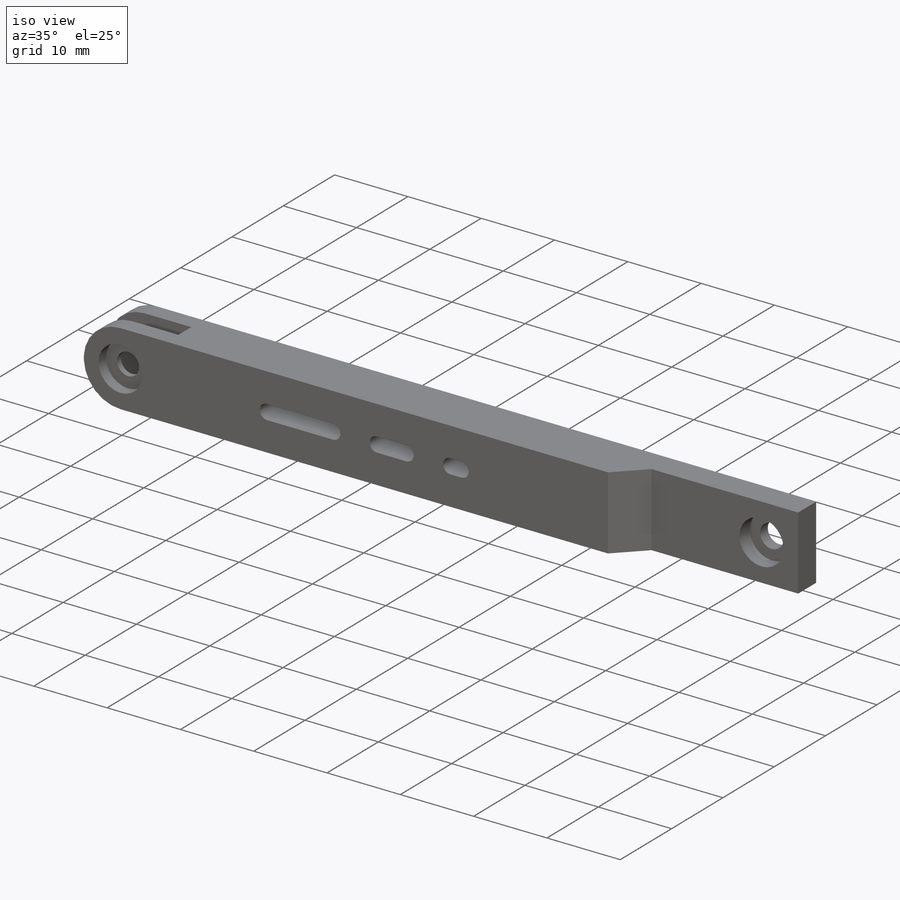
[diagram: iso view]
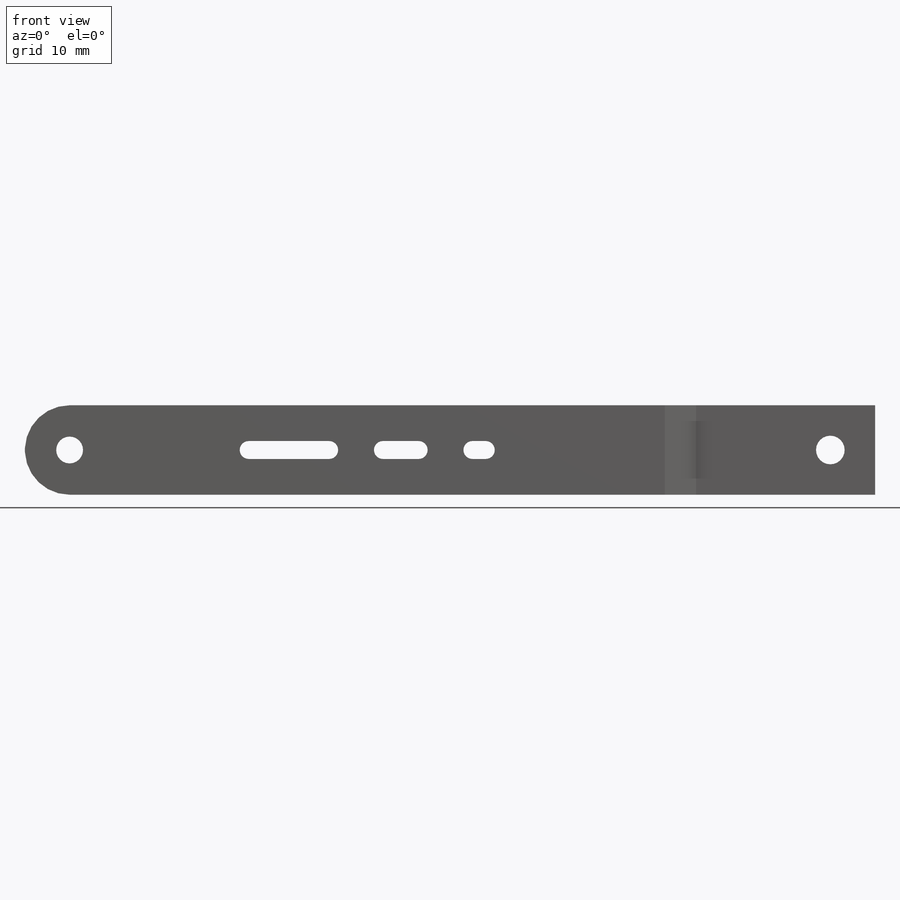
[diagram: front view]
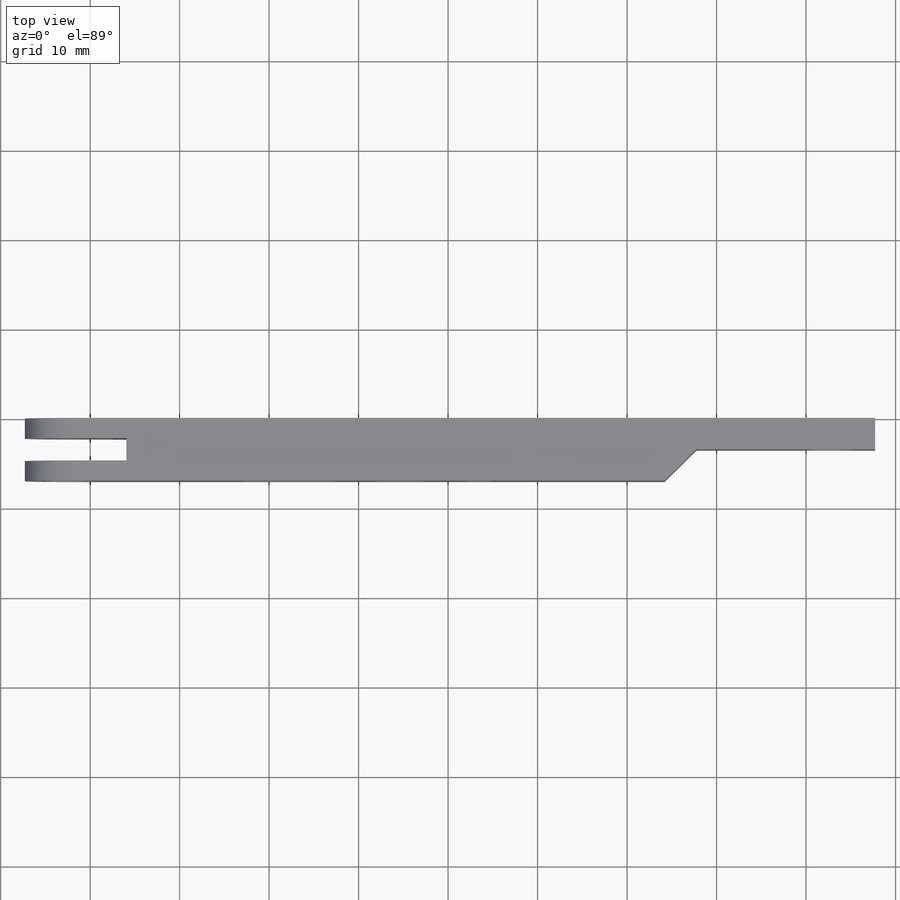
[diagram: top view]
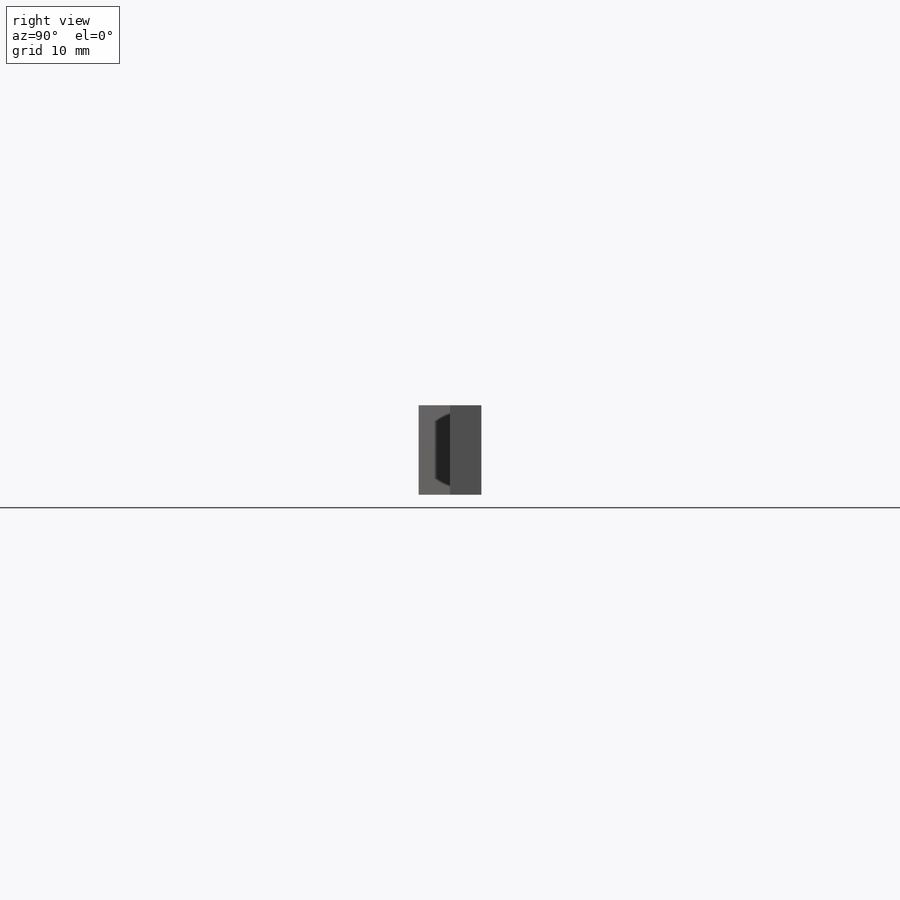
[diagram: right view]
SOLIDWORKS PART (.sldprt)
format: sldprt  version: not decoded by parser v0  size: 1,067,520 bytes
history: native  units: mm
features: sketch x52, cut_extrude x31, extrude x13, plane x5, chamfer x2, material x1, sweep x1 (+13 scaffold rows collapsed)
feature tree (118):
  scaffold x13  (default folders/planes/origin — collapsed)
  material  "Material <not specified>"
  sketch  "Sketch1"  dims[D3=35.0mm D4=45.0mm D1=5.0mm D2=100.0mm D5=~77.63932mm D6=100.0mm D7=2.5mm]
  extrude  "Boss-Extrude1"  Depth=5mm
  sketch  "Sketch2"
  extrude  "Boss-Extrude2"  Depth=11mm
  chamfer  "Chamfer1"  Distance=11mm Angle=65deg
  sketch  "Sketch3"  dims[D1=0.0mm]
  cut_extrude  "Cut-Extrude1"  Depth=6mm
  chamfer  "Chamfer2"  Distance=11mm Angle=65deg
  sketch  "Sketch4"  dims[c1.D2=~34.595823mm c2.D2=~24.819766deg c2.D1=0.0mm]
  sketch  "Sketch6"  dims[D1=0.0mm]
  cut_extrude  "Cut-Extrude2"  [1 undecoded]
  plane  "Plane1"
  sketch  "Sketch7"  dims[c1.D1=~28.279122mm c2.D1=~34.45706deg c2.D2=5.0mm]
  extrude  "Boss-Extrude3"  Depth=10mm
  sketch  "Sketch8"  dims[c1.D4=2.0mm c1.D5=2.0mm c1.D1=35.0mm c1.D2=10.0mm c1.D3=10.0mm c1.D6=4.0mm c1.D7=9.0mm c2.D1=6.0mm c2.D2=6.0mm c2.D8=1.5mm c2.D9=25.0mm]
  cut_extrude  "Cut-Extrude3"  Depth=10mm
  sketch  "Sketch9"  dims[D1=2.0mm D2=10.0mm]
  plane  "Plane2"
  sketch  "Sketch10"
  plane  "Plane3"
  sketch  "Sketch11"  dims[D1=8.0mm]
  plane  "Plane4"
  sketch  "Sketch12"  dims[D1=1.75mm]
  sweep  "Cut-Sweep2"
  sketch  "Sketch13"
  cut_extrude  "Cut-Extrude4"  [1 undecoded]
  sketch  "Sketch14"
  cut_extrude  "Cut-Extrude5"  [1 undecoded]
  sketch  "Sketch15"  dims[c1.D1=0.5mm c1.D2=0.5mm c2.D1=1.0mm c2.D2=1.0mm]
  cut_extrude  "Cut-Extrude6"  Depth=10mm
  sketch  "Sketch16"  dims[D1=3.2mm]
  cut_extrude  "Cut-Extrude7"  Depth=10mm
  sketch  "Sketch17"  dims[D1=6.0mm]
  cut_extrude  "Cut-Extrude8"  Depth=10mm
  sketch  "Sketch18"  dims[D1=5.5mm]
  cut_extrude  "Cut-Extrude9"  Depth=1mm
  sketch  "Sketch20"
  sketch  "Sketch21"
  cut_extrude  "Cut-Extrude11"  Depth=10mm
  sketch  "Sketch22"  dims[D1=75.0mm]
  extrude  "Boss-Extrude4"  [1 undecoded]
  sketch  "Sketch23"  dims[D1=3.2mm D2=5.0mm]
  cut_extrude  "Cut-Extrude12"  [1 undecoded]
  sketch  "Sketch24"  dims[D1=6.0mm]
  cut_extrude  "Cut-Extrude13"  Depth=2mm
  sketch  "Sketch19"  dims[D1=1.75mm D2=~0.834858mm]
  cut_extrude  "Cut-Extrude10"  Depth=10mm
  sketch  "Sketch25"  dims[c1.D2=1.5mm c1.D3=~0.772358mm c1.D1=1.75mm c2.D2=1.75mm c2.D4=1.75mm c2.D1=0.5mm c3.D2=0.5mm c3.D3=2.0mm c3.D4=2.0mm]
  cut_extrude  "Cut-Extrude14"  [1 undecoded]
  sketch  "Sketch27"
  sketch  "Sketch28"
  cut_extrude  "Cut-Extrude15"  [1 undecoded]
  sketch  "Sketch29"
  extrude  "Boss-Extrude5"  [1 undecoded]
  sketch  "Sketch30"
  extrude  "Boss-Extrude6"  [1 undecoded]
  sketch  "Sketch31"  dims[D1=0.0mm D2=0.0mm D3=0.0mm D4=0.0mm D5=0.0mm]
  extrude  "Boss-Extrude7"  Depth=2mm
  sketch  "Sketch32"  dims[D1=3.0mm D2=15.0mm]
  cut_extrude  "Cut-Extrude16"  [1 undecoded]
  sketch  "Sketch33"  dims[D1=5.0mm D2=5.0mm]
  cut_extrude  "Cut-Extrude17"  Depth=2mm
  sketch  "Sketch34"  dims[D1=1.5mm]
  cut_extrude  "Cut-Extrude18"  [1 undecoded]
  sketch  "Sketch35"  dims[D1=4.25mm]
  cut_extrude  "Cut-Extrude19"  [1 undecoded]
  sketch  "Sketch36"
  cut_extrude  "Cut-Extrude20"  [1 undecoded]
  sketch  "Sketch37"  dims[D1=6.75mm D2=1.5mm]
  cut_extrude  "Cut-Extrude21"  [1 undecoded]
  sketch  "Sketch38"  dims[D1=0.0mm D2=0.0mm]
  extrude  "Boss-Extrude8"  [1 undecoded]
  sketch  "Sketch39"  dims[D1=10.0mm]
  cut_extrude  "Cut-Extrude22"  [1 undecoded]
  sketch  "Sketch40"  dims[D1=6.0mm]
  cut_extrude  "Cut-Extrude23"  Depth=1mm
  sketch  "Sketch41"  dims[D1=0.125mm]
  extrude  "Boss-Extrude9"  [1 undecoded]
  sketch  "Sketch42"  dims[D1=0.0mm]
  extrude  "Boss-Extrude10"  Depth=2mm
  sketch  "Sketch43"  dims[D1=6.0mm]
  cut_extrude  "Cut-Extrude24"  Depth=2mm
  plane  "Plane5"
  sketch  "Sketch44"
  sketch  "Sketch45"  dims[D1=0.0mm]
  extrude  "Boss-Extrude11"  Depth=20mm
  sketch  "Sketch46"  dims[D1=3.2mm D2=5.0mm]
  cut_extrude  "Cut-Extrude25"  [1 undecoded]
  sketch  "Sketch47"  dims[D1=6.0mm]
  cut_extrude  "Cut-Extrude26"  [1 undecoded]
  sketch  "Sketch48"
  extrude  "Boss-Extrude12"  [1 undecoded]
  sketch  "Sketch49"  dims[D1=20.0mm]
  cut_extrude  "Cut-Extrude27"  [1 undecoded]
  sketch  "Sketch50"  dims[D1=6.0mm]
  cut_extrude  "Cut-Extrude28"  Depth=2mm
  sketch  "Sketch51"
  extrude  "Boss-Extrude13"  [1 undecoded]
  sketch  "Sketch52"  dims[D1=3.0mm]
  cut_extrude  "Cut-Extrude29"  Depth=10mm
  sketch  "Sketch53"  dims[D1=6.0mm]
  cut_extrude  "Cut-Extrude30"  Depth=1.5mm
  sketch  "Sketch54"  dims[D1=2.5mm]
  cut_extrude  "Cut-Extrude31"  [1 undecoded]
decode coverage: 61 of 99 modeling features carry decoded parameters
note: ~ marks probable driven/reference dimensions
note: 23 parameter values undecoded
summary: no parameter record found for 23 features
note: suppression state not decoded; provenance and decode notes live in map.json
